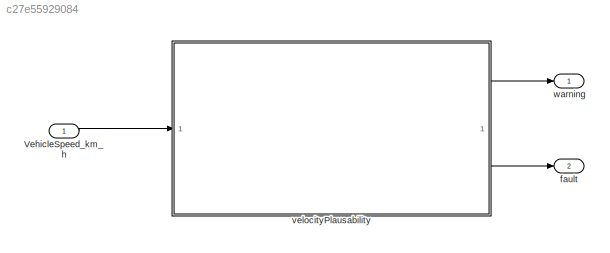
MODEL slx_c27e55929084
KIND model
CONFIG AbsTol = auto
CONFIG EnableMultiTasking = off
CONFIG FixedStep = auto
CONFIG MaxStep = auto
CONFIG MinStep = auto
CONFIG RelTol = 1e-3
CONFIG SampleTimeConstraint = Unconstrained
CONFIG SolverName = FixedStepAuto
CONFIG StartTime = 0.0
CONFIG StopTime = 20
BLOCK [Inport] VehicleSpeed_km_h
  OutDataTypeStr = single
BLOCK [Outport] fault
  Port = 2
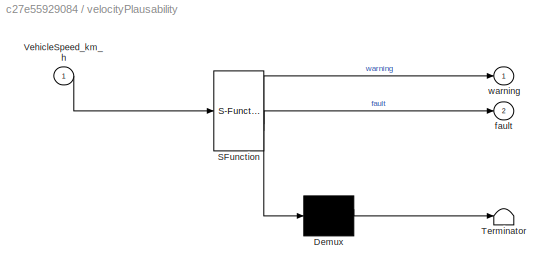
BLOCK [SubSystem] velocityPlausability
  ErrorFcn = Stateflow.Translate.translate
  PermitHierarchicalResolution = ExplicitOnly
  SFBlockType = MATLAB Function
  TreatAsAtomicUnit = on
BLOCK [Demux] velocityPlausability/ Demux 
  Outputs = 1
BLOCK [S-Function] velocityPlausability/ SFunction 
  EnableBusSupport = on
  FunctionName = sf_sfun
  PortCounts = [1 3]
  SFcnIsStateOwnerBlock = off
  SFunctionDeploymentMode = off
  Tag = Stateflow S-Function 2
BLOCK [Terminator] velocityPlausability/ Terminator 
BLOCK [Inport] velocityPlausability/VehicleSpeed_km_h
BLOCK [Outport] velocityPlausability/fault
  Port = 2
BLOCK [Outport] velocityPlausability/warning
BLOCK [Outport] warning
LINE VehicleSpeed_km_h:1 -> velocityPlausability:1
LINE velocityPlausability:1 -> warning:1
LINE velocityPlausability:2 -> fault:1
CHART velocityPlausability states=1 transitions=1
  STATE_LABEL 'eML_blk_kernel()'
  STATE_LABEL 'SCRIPT:\nfunction [warning, fault] = velocityPlausability(VehicleSpeed_km_h)\n% initialization\nwarning = boolean(0);\nfault = boolean(0);\n\nif (VehicleSpeed_km_h > 240|| VehicleSpeed_km_h < -60 )\n    warning = boolean(1);\n    fault = boolean(1);\nend\n\n\n\n\n\n'
CHART  states=0 transitions=0
